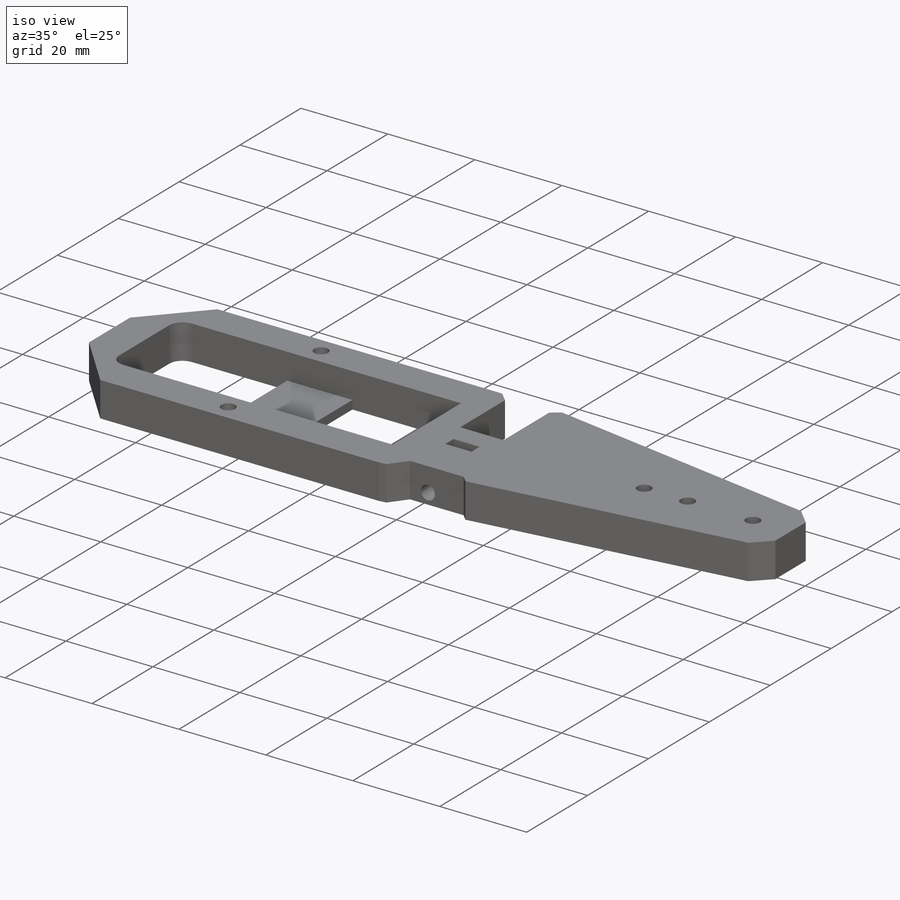
[diagram: iso view]
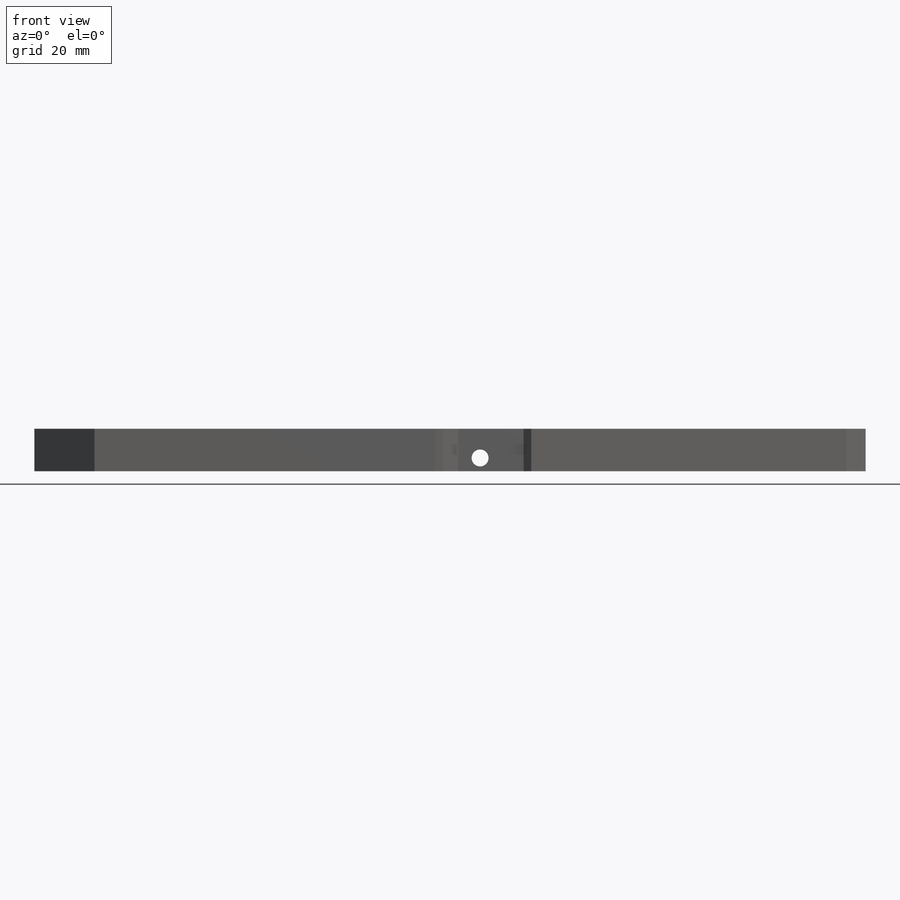
[diagram: front view]
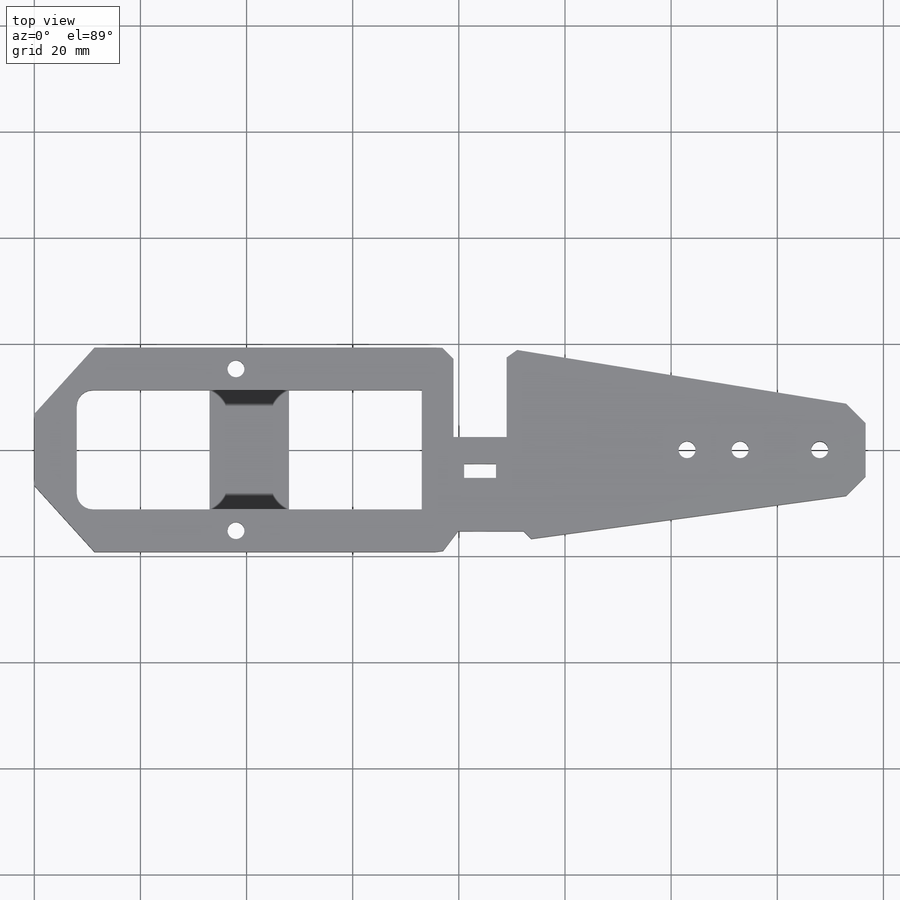
[diagram: top view]
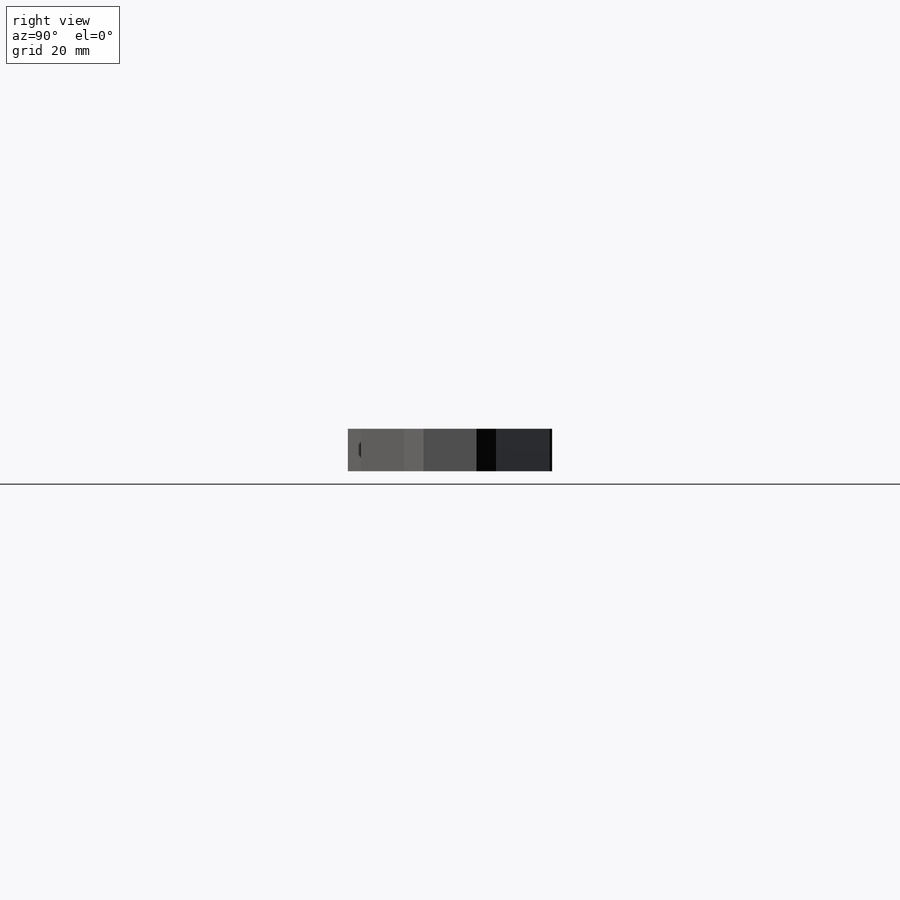
[diagram: right view]
SOLIDWORKS PART (.sldprt)
format: sldprt  version: not decoded by parser v0  size: 397,312 bytes
history: native  units: mm
features: sketch x7, chamfer x3, cut_extrude x3, extrude x2, material x1, cut_revolve x1, pattern_linear x1 (+11 scaffold rows collapsed)
feature tree (29):
  scaffold x11  (default folders/planes/origin — collapsed)
  material  "Material <not specified>"
  sketch  "Sketch1"  dims[c1.D9=116.42mm c1.D10=58.21mm c1.D11=~2.565479mm c1.D1=15.0mm c1.D2=15.0mm c1.D3=22.5mm c1.D4=65.0mm c1.D5=2.0mm c1.D6=28.0mm c1.D7=128.0mm c1.D8=19.11mm c2.D5=12.0mm c2.D9=8.0mm c2.D11=15.0mm c2.D12=10.0mm c2.D13=10.0mm]
  sketch  "Sketch2"  dims[c1.D1=10.0mm c1.D9=~9.745897mm c1.D11=~1.096227mm c1.D14=3.0mm c1.D15=3.0mm c1.D2=10.0mm c1.D3=5.0mm c2.D2=8.0mm c2.D3=8.0mm c2.D4=8.0mm c2.D5=2.7mm c2.D6=6.0mm c2.D7=10.0mm c2.D8=~42.758223mm c2.D9=22.5mm c3.D8=25.0mm c3.D9=30.0mm c3.D10=4.0mm c3.D11=4.0mm c3.D12=135.0mm c4.D12=45.0deg c4.D13=~8.925192mm c5.D13=45.0deg c5.D14=10.0mm c5.D15=10.0mm c5.D12=~6.623469mm c6.D12=150.0deg c6.D13=~23.011876mm c7.D13=45.0deg c7.D16=5.0mm c7.D17=10.0mm c7.D1=~151.878691deg]
  extrude  "Boss-Extrude1"  Depth=8mm
  sketch  "Sketch4"  dims[D1=15.0mm D2=25.0mm]
  extrude  "Boss-Extrude2"  Depth=2mm
  chamfer  "Chamfer2"  Distance=2mm Angle=45deg
  sketch  "Sketch3"  dims[D1=3.2mm D2=2.5mm]
  cut_extrude  "Cut-Extrude1"  [1 undecoded]
  sketch  "Sketch5"  dims[D1=5.7mm D2=5.7mm]
  cut_extrude  "Cut-Extrude2"  Depth=2.4mm
  sketch  "Sketch6"  dims[c1.D1=~5.124545mm c2.D1=45.0deg c2.D2=3.3mm]
  cut_revolve  "Cut-Revolve1"  Angle=360deg
  pattern_linear  "LPattern1"  Count1=2 Count2=1 Spacing1=10mm Spacing2=10mm
  sketch  "Sketch7"  dims[D1=~3.780955mm]
  cut_extrude  "Cut-Extrude3"  [1 undecoded]
  chamfer  "Chamfer4"  Distance=4mm Angle=45deg
  chamfer  "Chamfer5"  Distance=2mm Angle=45deg
decode coverage: 15 of 17 modeling features carry decoded parameters
note: ~ marks probable driven/reference dimensions
note: 2 parameter values undecoded
note: suppression state not decoded; provenance and decode notes live in map.json
